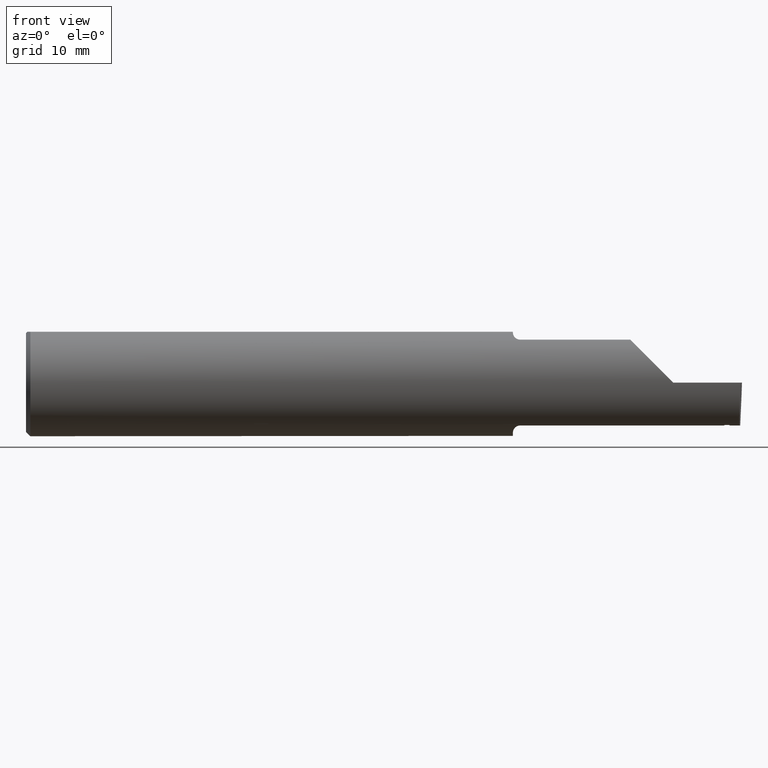
[diagram: clean part render]
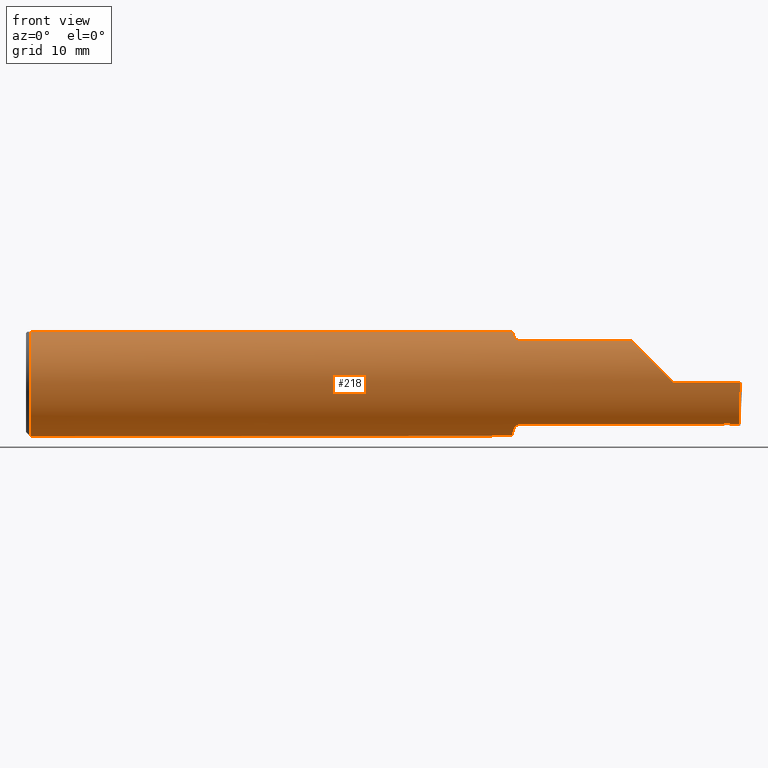
[diagram: same view with one face highlighted and labeled with its STEP entity id]
A machine part, front view. The second image highlights one B-rep face of the part: STEP entity #218.
In plain terms, the highlighted cylindrical surface (partial cylindrical patch) has radius 4.7587 mm, axis along (-1, -0, -0).
Its self-contained STEP definition (entity closure, byte-faithful):
#2 = CARTESIAN_POINT ( 'NONE',  ( 2.452970636338613453, -0.1208513501369361531, -0.1431606568512440725 ) ) ;
#10 = VECTOR ( 'NONE', #738, 39.37007874015748143 ) ;
#15 = EDGE_CURVE ( 'NONE', #339, #454, #775, .T. ) ;
#16 = CARTESIAN_POINT ( 'NONE',  ( 2.455366610645390413, -0.1203676099590724330, -0.1435704688917812111 ) ) ;
#18 = ORIENTED_EDGE ( 'NONE', *, *, #116, .F. ) ;
#33 = DIRECTION ( 'NONE',  ( 1.000000000000000000, 0.000000000000000000, 0.000000000000000000 ) ) ;
#40 = CARTESIAN_POINT ( 'NONE',  ( 2.449234338863458760, -0.1206273854352417213, -0.1433494205884963957 ) ) ;
#48 = ORIENTED_EDGE ( 'NONE', *, *, #493, .F. ) ;
#51 = CARTESIAN_POINT ( 'NONE',  ( 1.716924463282974989, -0.1152182125075827818, 0.1477647100440765693 ) ) ;
#58 = DIRECTION ( 'NONE',  ( -1.000000000000000000, -0.000000000000000000, -0.000000000000000000 ) ) ;
#81 = CARTESIAN_POINT ( 'NONE',  ( 1.700346246588684940, -0.07856197451716395719, -0.1701664510438046507 ) ) ;
#91 = B_SPLINE_CURVE_WITH_KNOTS ( 'NONE', 3,
 ( #518, #435, #129, #288, #934, #51, #855, #753 ),
 .UNSPECIFIED., .F., .F.,
 ( 4, 2, 2, 4 ),
 ( 0.0004561457252213468741, 0.001084815134961807179, 0.001399149839832033266, 0.001713484544702259353 ),
 .UNSPECIFIED. ) ;
#96 = CARTESIAN_POINT ( 'NONE',  ( 1.699999999999999956, -0.07359296612170562746, -0.1723769398647691520 ) ) ;
#107 = CARTESIAN_POINT ( 'NONE',  ( 1.724999999999999867, -0.1172600179964006922, -0.1461167706989302817 ) ) ;
#113 = VERTEX_POINT ( 'NONE', #107 ) ;
#114 = CARTESIAN_POINT ( 'NONE',  ( 2.490903355898019367, -0.1172600179964007477, -0.1461167706989302817 ) ) ;
#115 = CARTESIAN_POINT ( 'NONE',  ( 2.260000000000000231, -0.1873499999999999888, 2.939152317953647352E-17 ) ) ;
#116 = EDGE_CURVE ( 'NONE', #206, #191, #915, .T. ) ;
#127 = CARTESIAN_POINT ( 'NONE',  ( 2.438025625059659696, -0.1199519675431318100, -0.1439150721173130809 ) ) ;
#129 = CARTESIAN_POINT ( 'NONE',  ( 1.704075010165368109, -0.09778159395695855405, 0.1599914159748311027 ) ) ;
#138 = CARTESIAN_POINT ( 'NONE',  ( 2.438025625059659696, -0.1199519675431318100, -0.1439150721173130809 ) ) ;
#141 = EDGE_CURVE ( 'NONE', #454, #481, #168, .T. ) ;
#147 = ORIENTED_EDGE ( 'NONE', *, *, #1000, .F. ) ;
#148 = VECTOR ( 'NONE', #58, 39.37007874015748143 ) ;
#161 = EDGE_CURVE ( 'NONE', #449, #339, #581, .T. ) ;
#168 = B_SPLINE_CURVE_WITH_KNOTS ( 'NONE', 3,
 ( #682, #984, #506, #595 ),
 .UNSPECIFIED., .F., .F.,
 ( 4, 4 ),
 ( 4.423516731080786679E-05, 0.0004561457252213468741 ),
 .UNSPECIFIED. ) ;
#172 = CARTESIAN_POINT ( 'NONE',  ( 2.458156987516916026, -0.1172600179964005396, -0.1461167706989303094 ) ) ;
#182 = EDGE_CURVE ( 'NONE', #755, #619, #818, .T. ) ;
#184 = DIRECTION ( 'NONE',  ( 0.000000000000000000, 0.000000000000000000, 1.000000000000000000 ) ) ;
#191 = VERTEX_POINT ( 'NONE', #547 ) ;
#194 = CARTESIAN_POINT ( 'NONE',  ( 2.447366197523236586, -0.1205152561587170268, -0.1434437764735944087 ) ) ;
#196 = VECTOR ( 'NONE', #848, 39.37007874015748143 ) ;
#201 = ORIENTED_EDGE ( 'NONE', *, *, #261, .F. ) ;
#204 = CARTESIAN_POINT ( 'NONE',  ( 1.720804171164107110, -0.1167508198888949633, -0.1465276362740037530 ) ) ;
#205 = CARTESIAN_POINT ( 'NONE',  ( 0.000000000000000000, -0.06039039658753697637, 0.1773499999999999799 ) ) ;
#206 = VERTEX_POINT ( 'NONE', #773 ) ;
#209 = CARTESIAN_POINT ( 'NONE',  ( 0.01499999999999999944, -0.06039039658753697637, 0.1773499999999999799 ) ) ;
#210 = CARTESIAN_POINT ( 'NONE',  ( 1.701062863587535334, -0.08334999999999985476, -0.1677879614275112619 ) ) ;
#215 = CARTESIAN_POINT ( 'NONE',  ( 1.717163414264744281, -0.1151183835841406988, -0.1478135984872521180 ) ) ;
#218 = ADVANCED_FACE ( 'NONE', ( #309 ), #453, .T. ) ;
#221 = CARTESIAN_POINT ( 'NONE',  ( 2.086500000000000021, -0.1172600179964007477, -0.1461167706989302817 ) ) ;
#230 = EDGE_CURVE ( 'NONE', #826, #449, #427, .T. ) ;
#242 = CARTESIAN_POINT ( 'NONE',  ( 2.454215874547053922, -0.1209258949558987134, -0.1430977286542417515 ) ) ;
#250 = VECTOR ( 'NONE', #791, 39.37007874015748143 ) ;
#254 = VERTEX_POINT ( 'NONE', #794 ) ;
#259 = EDGE_CURVE ( 'NONE', #710, #206, #315, .T. ) ;
#261 = EDGE_CURVE ( 'NONE', #875, #755, #265, .T. ) ;
#262 = DIRECTION ( 'NONE',  ( -1.000000000000000000, -0.000000000000000000, -0.000000000000000000 ) ) ;
#265 = B_SPLINE_CURVE_WITH_KNOTS ( 'NONE', 3,
 ( #172, #414, #561, #16, #242, #888 ),
 .UNSPECIFIED., .F., .F.,
 ( 4, 2, 4 ),
 ( 0.0002880367379712531488, 0.0003798719638981552446, 0.0004717071898250573946 ),
 .UNSPECIFIED. ) ;
#269 = CARTESIAN_POINT ( 'NONE',  ( 0.01499999999999999944, 0.000000000000000000, 0.000000000000000000 ) ) ;
#278 = AXIS2_PLACEMENT_3D ( 'NONE', #519, #601, #424 ) ;
#288 = CARTESIAN_POINT ( 'NONE',  ( 1.709249444250374284, -0.1073163636891284328, 0.1536158790136665786 ) ) ;
#291 = VERTEX_POINT ( 'NONE', #556 ) ;
#292 = B_SPLINE_CURVE_WITH_KNOTS ( 'NONE', 3,
 ( #360, #859, #204, #215, #772, #376, #674, #836, #528, #380, #1022, #210 ),
 .UNSPECIFIED., .F., .F.,
 ( 4, 2, 2, 2, 2, 4 ),
 ( 1.967976973658592312E-07, 0.0001599896235275547862, 0.0003197824493577436779, 0.0006393681010181210276, 0.0009589537526784982146, 0.001278539404338875510 ),
 .UNSPECIFIED. ) ;
#296 = VERTEX_POINT ( 'NONE', #324 ) ;
#303 = CARTESIAN_POINT ( 'NONE',  ( 2.202189699843949633, -0.1873500000000000998, 0.05781030015605104211 ) ) ;
#309 = FACE_OUTER_BOUND ( 'NONE', #1037, .T. ) ;
#312 = CARTESIAN_POINT ( 'NONE',  ( 2.150065971957467070, -0.1623470442677541759, 0.1099340280425336880 ) ) ;
#315 = B_SPLINE_CURVE_WITH_KNOTS ( 'NONE', 3,
 ( #653, #81, #96, #728 ),
 .UNSPECIFIED., .F., .F.,
 ( 4, 4 ),
 ( 0.001278539404338875510, 0.001694873732696221573 ),
 .UNSPECIFIED. ) ;
#318 = CARTESIAN_POINT ( 'NONE',  ( 1.724999999999999867, -0.1172600179964007477, 0.1461167706989302539 ) ) ;
#319 = CARTESIAN_POINT ( 'NONE',  ( 2.441761829506831738, -0.1201777670996134612, -0.1437266445542133841 ) ) ;
#320 = VERTEX_POINT ( 'NONE', #801 ) ;
#324 = CARTESIAN_POINT ( 'NONE',  ( 0.01499999999999756042, 0.06039039658754215278, 0.1773499999999999799 ) ) ;
#326 = DIRECTION ( 'NONE',  ( 1.000000000000000000, 0.000000000000000000, 0.000000000000000000 ) ) ;
#339 = VERTEX_POINT ( 'NONE', #649 ) ;
#345 = ORIENTED_EDGE ( 'NONE', *, *, #259, .F. ) ;
#360 = CARTESIAN_POINT ( 'NONE',  ( 1.724999999999999867, -0.1172600179964006922, -0.1461167706989302817 ) ) ;
#370 = EDGE_CURVE ( 'NONE', #191, #296, #896, .T. ) ;
#376 = CARTESIAN_POINT ( 'NONE',  ( 1.711340974786206504, -0.1102890168945986904, -0.1514792188789464145 ) ) ;
#378 = ORIENTED_EDGE ( 'NONE', *, *, #15, .F. ) ;
#380 = CARTESIAN_POINT ( 'NONE',  ( 1.702380638915944600, -0.09060738690120603844, -0.1640321561807270845 ) ) ;
#382 = VECTOR ( 'NONE', #33, 39.37007874015748143 ) ;
#392 = CARTESIAN_POINT ( 'NONE',  ( 0.000000000000000000, 0.000000000000000000, 0.000000000000000000 ) ) ;
#407 = ORIENTED_EDGE ( 'NONE', *, *, #141, .F. ) ;
#412 = AXIS2_PLACEMENT_3D ( 'NONE', #562, #326, #494 ) ;
#414 = CARTESIAN_POINT ( 'NONE',  ( 2.457654169373977737, -0.1181371521106752837, -0.1454128627112770134 ) ) ;
#424 = DIRECTION ( 'NONE',  ( 0.000000000000000000, 0.000000000000000000, -1.000000000000000000 ) ) ;
#427 = CIRCLE ( 'NONE', #695, 0.1873499999999999888 ) ;
#428 = CARTESIAN_POINT ( 'NONE',  ( 2.437567358599292966, -0.1190611272264851528, -0.1446575798142234748 ) ) ;
#435 = CARTESIAN_POINT ( 'NONE',  ( 1.702158970028690321, -0.09067355718685700394, 0.1641499263364887273 ) ) ;
#438 = VERTEX_POINT ( 'NONE', #115 ) ;
#445 = CARTESIAN_POINT ( 'NONE',  ( 2.458156987516916026, -0.1172600179964005396, -0.1461167706989303094 ) ) ;
#449 = VERTEX_POINT ( 'NONE', #209 ) ;
#453 = CYLINDRICAL_SURFACE ( 'NONE', #555, 0.1873499999999999888 ) ;
#454 = VERTEX_POINT ( 'NONE', #741 ) ;
#464 = VECTOR ( 'NONE', #502, 39.37007874015748143 ) ;
#466 = EDGE_CURVE ( 'NONE', #296, #826, #864, .T. ) ;
#469 = ORIENTED_EDGE ( 'NONE', *, *, #910, .F. ) ;
#471 = EDGE_CURVE ( 'NONE', #619, #320, #477, .T. ) ;
#473 = DIRECTION ( 'NONE',  ( 0.000000000000000000, 0.000000000000000000, 1.000000000000000000 ) ) ;
#477 = B_SPLINE_CURVE_WITH_KNOTS ( 'NONE', 3,
 ( #127, #428, #902, #579 ),
 .UNSPECIFIED., .F., .F.,
 ( 4, 4 ),
 ( 4.610090873601838277E-18, 9.501582085342238167E-05 ),
 .UNSPECIFIED. ) ;
#479 = CARTESIAN_POINT ( 'NONE',  ( 0.01499999999999999944, 0.000000000000000000, 0.000000000000000000 ) ) ;
#481 = VERTEX_POINT ( 'NONE', #927 ) ;
#493 = EDGE_CURVE ( 'NONE', #320, #113, #933, .T. ) ;
#494 = DIRECTION ( 'NONE',  ( 0.000000000000000000, 0.000000000000000000, -1.000000000000000000 ) ) ;
#502 = DIRECTION ( 'NONE',  ( 1.000000000000000000, 0.000000000000000000, 0.000000000000000000 ) ) ;
#506 = CARTESIAN_POINT ( 'NONE',  ( 1.700344683557281300, -0.07855153123406181936, 0.1701716388274757685 ) ) ;
#518 = CARTESIAN_POINT ( 'NONE',  ( 1.701062863587533558, -0.08334999999998814191, 0.1677879614275171183 ) ) ;
#519 = CARTESIAN_POINT ( 'NONE',  ( 1.699999999999999956, 0.000000000000000000, 0.000000000000000000 ) ) ;
#522 = DIRECTION ( 'NONE',  ( -1.000000000000000000, -0.000000000000000000, -0.000000000000000000 ) ) ;
#524 = CARTESIAN_POINT ( 'NONE',  ( 2.452970636338613453, -0.1208513501369361531, -0.1431606568512440725 ) ) ;
#527 = CARTESIAN_POINT ( 'NONE',  ( 2.493506715846705468, -0.1873499999999999888, 0.000000000000000000 ) ) ;
#528 = CARTESIAN_POINT ( 'NONE',  ( 1.704475235432781233, -0.09757364237049404032, -0.1599863467203317124 ) ) ;
#530 = ORIENTED_EDGE ( 'NONE', *, *, #370, .F. ) ;
#536 = CARTESIAN_POINT ( 'NONE',  ( 2.113883229301070532, -0.1172600179964006645, 0.1461167706989302539 ) ) ;
#547 = CARTESIAN_POINT ( 'NONE',  ( 1.699999999999999956, 0.06039039658754216666, 0.1773499999999999799 ) ) ;
#548 = ORIENTED_EDGE ( 'NONE', *, *, #230, .F. ) ;
#555 = AXIS2_PLACEMENT_3D ( 'NONE', #392, #613, #473 ) ;
#556 = CARTESIAN_POINT ( 'NONE',  ( 2.113883229301070532, -0.1172600179964006645, 0.1461167706989302539 ) ) ;
#561 = CARTESIAN_POINT ( 'NONE',  ( 2.457039432924773781, -0.1189753745793367401, -0.1447262979170400310 ) ) ;
#562 = CARTESIAN_POINT ( 'NONE',  ( 1.699999999999999956, 0.000000000000000000, 0.000000000000000000 ) ) ;
#565 = VERTEX_POINT ( 'NONE', #527 ) ;
#567 = LINE ( 'NONE', #804, #250 ) ;
#572 =( BOUNDED_CURVE ( )  B_SPLINE_CURVE ( 3, ( #686, #303, #312, #536 ),
 .UNSPECIFIED., .F., .F. ) 
 B_SPLINE_CURVE_WITH_KNOTS ( ( 4, 4 ),
 ( 4.712388980384688786, 5.606916381293136631 ),
 .UNSPECIFIED. ) 
 CURVE ( )  GEOMETRIC_REPRESENTATION_ITEM ( )  RATIONAL_B_SPLINE_CURVE ( ( 1.000000000000000000, 0.9344226172588802060, 0.9344226172588802060, 1.000000000000000000 ) ) 
 REPRESENTATION_ITEM ( '' )  );
#573 = ORIENTED_EDGE ( 'NONE', *, *, #867, .T. ) ;
#579 = CARTESIAN_POINT ( 'NONE',  ( 2.436647136148047732, -0.1172600179964005812, -0.1461167706989303094 ) ) ;
#581 = LINE ( 'NONE', #205, #464 ) ;
#584 = DIRECTION ( 'NONE',  ( 0.000000000000000000, 0.000000000000000000, 1.000000000000000000 ) ) ;
#595 = CARTESIAN_POINT ( 'NONE',  ( 1.701062863587533558, -0.08334999999998814191, 0.1677879614275171183 ) ) ;
#601 = DIRECTION ( 'NONE',  ( 1.000000000000000000, 0.000000000000000000, 0.000000000000000000 ) ) ;
#602 = ORIENTED_EDGE ( 'NONE', *, *, #656, .T. ) ;
#613 = DIRECTION ( 'NONE',  ( -1.000000000000000000, -0.000000000000000000, -0.000000000000000000 ) ) ;
#619 = VERTEX_POINT ( 'NONE', #138 ) ;
#643 = AXIS2_PLACEMENT_3D ( 'NONE', #269, #522, #584 ) ;
#649 = CARTESIAN_POINT ( 'NONE',  ( 1.699999999999999956, -0.06039039658753699025, 0.1773499999999999799 ) ) ;
#653 = CARTESIAN_POINT ( 'NONE',  ( 1.701062863587535334, -0.08334999999999985476, -0.1677879614275112619 ) ) ;
#656 = EDGE_CURVE ( 'NONE', #438, #291, #572, .T. ) ;
#661 = ORIENTED_EDGE ( 'NONE', *, *, #966, .F. ) ;
#662 = EDGE_CURVE ( 'NONE', #565, #438, #766, .T. ) ;
#674 = CARTESIAN_POINT ( 'NONE',  ( 1.709228130464466089, -0.1072797540790367127, -0.1536407449207395637 ) ) ;
#678 = CARTESIAN_POINT ( 'NONE',  ( 2.493506715846705468, -0.1873499999999999888, 0.000000000000000000 ) ) ;
#682 = CARTESIAN_POINT ( 'NONE',  ( 1.699999999999999956, -0.06851976604679065053, 0.1743704796142198643 ) ) ;
#684 = CARTESIAN_POINT ( 'NONE',  ( 0.01499999999999999944, 0.000000000000000000, -0.1873499999999999888 ) ) ;
#686 = CARTESIAN_POINT ( 'NONE',  ( 2.260000000000000231, -0.1873499999999999888, 2.939152317953647352E-17 ) ) ;
#695 = AXIS2_PLACEMENT_3D ( 'NONE', #479, #262, #184 ) ;
#710 = VERTEX_POINT ( 'NONE', #946 ) ;
#728 = CARTESIAN_POINT ( 'NONE',  ( 1.699999999999999956, -0.06851976604679065053, -0.1743704796142198643 ) ) ;
#738 = DIRECTION ( 'NONE',  ( -1.000000000000000000, -0.000000000000000000, -0.000000000000000000 ) ) ;
#741 = CARTESIAN_POINT ( 'NONE',  ( 1.699999999999999956, -0.06851976604679065053, 0.1743704796142198643 ) ) ;
#748 = CARTESIAN_POINT ( 'NONE',  ( 2.086500000000000021, -0.1172600179964007477, 0.1461167706989302817 ) ) ;
#753 = CARTESIAN_POINT ( 'NONE',  ( 1.724999999999999867, -0.1172600179964007477, 0.1461167706989302539 ) ) ;
#755 = VERTEX_POINT ( 'NONE', #2 ) ;
#756 = CARTESIAN_POINT ( 'NONE',  ( 2.491992669264299742, -0.1873499999999999888, -0.05781030015605114619 ) ) ;
#764 = ORIENTED_EDGE ( 'NONE', *, *, #182, .F. ) ;
#766 = LINE ( 'NONE', #858, #196 ) ;
#770 = ORIENTED_EDGE ( 'NONE', *, *, #466, .F. ) ;
#772 = CARTESIAN_POINT ( 'NONE',  ( 1.715551048069661633, -0.1140002044565611855, -0.1486821290834929865 ) ) ;
#773 = CARTESIAN_POINT ( 'NONE',  ( 1.699999999999999956, -0.06851976604679065053, -0.1743704796142198643 ) ) ;
#775 = CIRCLE ( 'NONE', #412, 0.1873499999999999888 ) ;
#780 = EDGE_CURVE ( 'NONE', #254, #875, #567, .T. ) ;
#786 = ORIENTED_EDGE ( 'NONE', *, *, #161, .F. ) ;
#789 = VERTEX_POINT ( 'NONE', #318 ) ;
#791 = DIRECTION ( 'NONE',  ( -1.000000000000000000, -0.000000000000000000, -0.000000000000000000 ) ) ;
#794 = CARTESIAN_POINT ( 'NONE',  ( 2.490903355898019367, -0.1172600179964007477, -0.1461167706989302817 ) ) ;
#801 = CARTESIAN_POINT ( 'NONE',  ( 2.436647136148047732, -0.1172600179964005812, -0.1461167706989303094 ) ) ;
#804 = CARTESIAN_POINT ( 'NONE',  ( 2.086500000000000021, -0.1172600179964007477, -0.1461167706989302817 ) ) ;
#815 = CARTESIAN_POINT ( 'NONE',  ( 0.000000000000000000, 0.06039039658753697637, 0.1773499999999999799 ) ) ;
#818 = B_SPLINE_CURVE_WITH_KNOTS ( 'NONE', 3,
 ( #524, #844, #904, #40, #194, #825, #831, #319, #1023, #870 ),
 .UNSPECIFIED., .F., .F.,
 ( 4, 3, 3, 4 ),
 ( 0.000000000000000000, 9.519312345566919849E-05, 0.0002379828170348225011, 0.0003807725187854991847 ),
 .UNSPECIFIED. ) ;
#824 = LINE ( 'NONE', #748, #382 ) ;
#825 = CARTESIAN_POINT ( 'NONE',  ( 2.445498067408689469, -0.1204029065482854904, -0.1435380930435697644 ) ) ;
#826 = VERTEX_POINT ( 'NONE', #684 ) ;
#831 = CARTESIAN_POINT ( 'NONE',  ( 2.443629948511212735, -0.1202903368271704132, -0.1436323687961940654 ) ) ;
#836 = CARTESIAN_POINT ( 'NONE',  ( 1.705806801261506855, -0.1009700360460131507, -0.1578590382459147401 ) ) ;
#844 = CARTESIAN_POINT ( 'NONE',  ( 2.451725198846265386, -0.1207767932037570741, -0.1432235952746555019 ) ) ;
#848 = DIRECTION ( 'NONE',  ( -1.000000000000000000, -0.000000000000000000, -0.000000000000000000 ) ) ;
#855 = CARTESIAN_POINT ( 'NONE',  ( 1.720724556588811849, -0.1172600179964060768, 0.1461167706989260906 ) ) ;
#858 = CARTESIAN_POINT ( 'NONE',  ( 3.749399456654646757E-32, -0.1873499999999999888, 3.061616997868384127E-16 ) ) ;
#859 = CARTESIAN_POINT ( 'NONE',  ( 1.722868998470237889, -0.1172600179964007339, -0.1461167706989302539 ) ) ;
#864 = CIRCLE ( 'NONE', #643, 0.1873499999999999888 ) ;
#867 = EDGE_CURVE ( 'NONE', #254, #565, #960, .T. ) ;
#870 = CARTESIAN_POINT ( 'NONE',  ( 2.438025625059659696, -0.1199519675431318100, -0.1439150721173130809 ) ) ;
#875 = VERTEX_POINT ( 'NONE', #445 ) ;
#888 = CARTESIAN_POINT ( 'NONE',  ( 2.452970636338613453, -0.1208513501369361531, -0.1431606568512440725 ) ) ;
#889 = ORIENTED_EDGE ( 'NONE', *, *, #471, .F. ) ;
#896 = LINE ( 'NONE', #815, #10 ) ;
#902 = CARTESIAN_POINT ( 'NONE',  ( 2.437107804970412239, -0.1181637442922655878, -0.1453915222472295377 ) ) ;
#904 = CARTESIAN_POINT ( 'NONE',  ( 2.450479766355329048, -0.1207021382821599764, -0.1432865166685463043 ) ) ;
#910 = EDGE_CURVE ( 'NONE', #789, #291, #824, .T. ) ;
#914 = CARTESIAN_POINT ( 'NONE',  ( 2.491063981715931686, -0.1623470442677541759, -0.1099340280425337851 ) ) ;
#915 = CIRCLE ( 'NONE', #278, 0.1873499999999999888 ) ;
#927 = CARTESIAN_POINT ( 'NONE',  ( 1.701062863587533558, -0.08334999999998814191, 0.1677879614275171183 ) ) ;
#933 = LINE ( 'NONE', #221, #148 ) ;
#934 = CARTESIAN_POINT ( 'NONE',  ( 1.711319809340845710, -0.1102629523538396217, 0.1514982751257169247 ) ) ;
#946 = CARTESIAN_POINT ( 'NONE',  ( 1.701062863587535334, -0.08334999999999985476, -0.1677879614275112619 ) ) ;
#959 = ORIENTED_EDGE ( 'NONE', *, *, #662, .T. ) ;
#960 =( BOUNDED_CURVE ( )  B_SPLINE_CURVE ( 3, ( #114, #914, #756, #678 ),
 .UNSPECIFIED., .F., .T. ) 
 B_SPLINE_CURVE_WITH_KNOTS ( ( 4, 4 ),
 ( 0.08839520912052888091, 0.9829226100289757406 ),
 .UNSPECIFIED. ) 
 CURVE ( )  GEOMETRIC_REPRESENTATION_ITEM ( )  RATIONAL_B_SPLINE_CURVE ( ( 1.000000000000000000, 0.9344226172588803170, 0.9344226172588803170, 1.000000000000000000 ) ) 
 REPRESENTATION_ITEM ( '' )  );
#966 = EDGE_CURVE ( 'NONE', #481, #789, #91, .T. ) ;
#984 = CARTESIAN_POINT ( 'NONE',  ( 1.699999999999999289, -0.07360907839729495528, 0.1723706084642000758 ) ) ;
#1000 = EDGE_CURVE ( 'NONE', #113, #710, #292, .T. ) ;
#1022 = CARTESIAN_POINT ( 'NONE',  ( 1.701612951569643428, -0.08702537370779851733, -0.1659621904011591709 ) ) ;
#1023 = CARTESIAN_POINT ( 'NONE',  ( 2.439893721692793616, -0.1200649772597332660, -0.1438208794962179404 ) ) ;
#1037 = EDGE_LOOP ( 'NONE', ( #1043, #573, #959, #602, #469, #661, #407, #378, #786, #548, #770, #530, #18, #345, #147, #48, #889, #764, #201 ) ) ;
#1043 = ORIENTED_EDGE ( 'NONE', *, *, #780, .F. ) ;